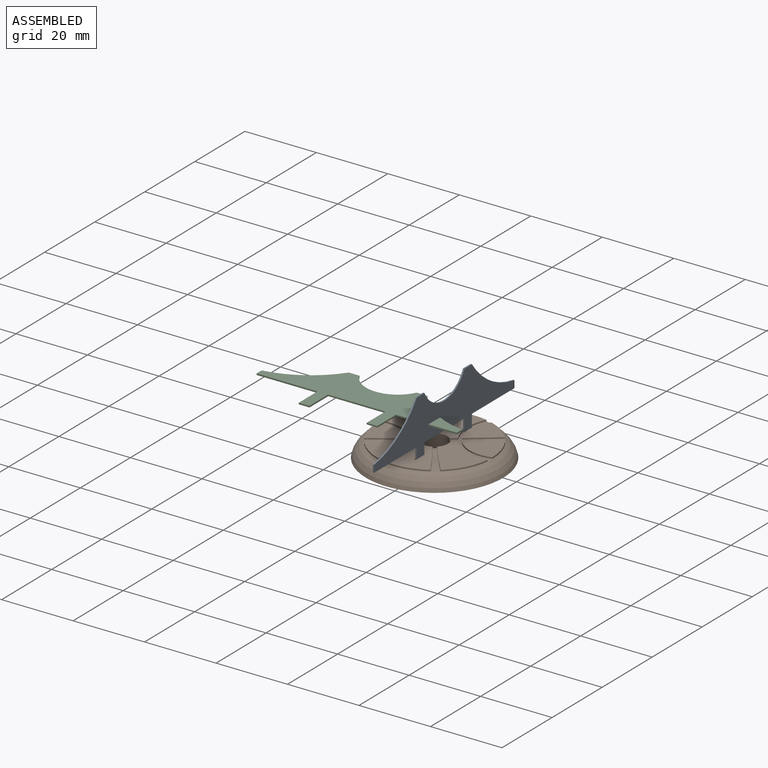
[diagram: assembled view]
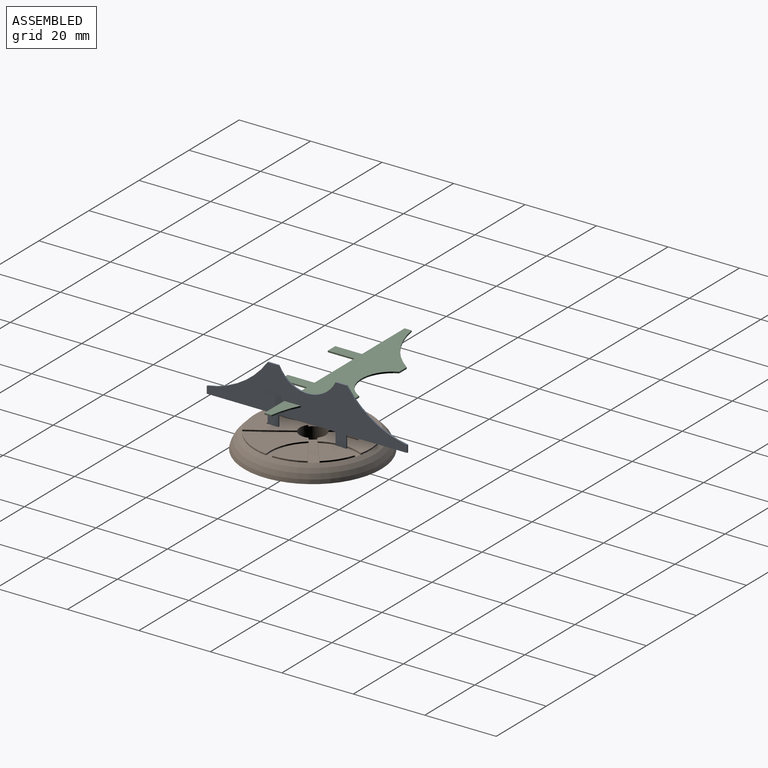
[diagram: assembled view, second angle]
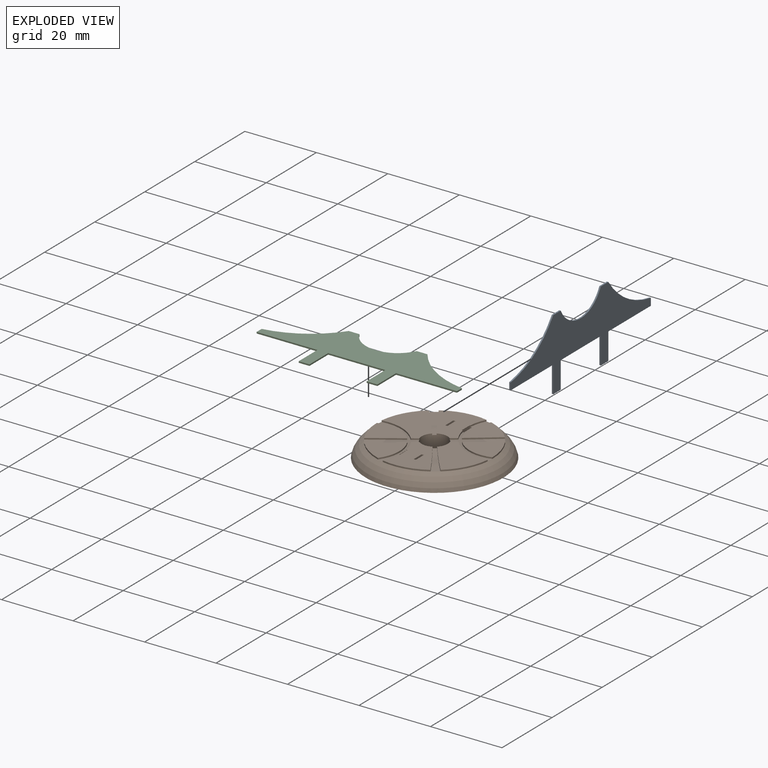
[diagram: exploded view]
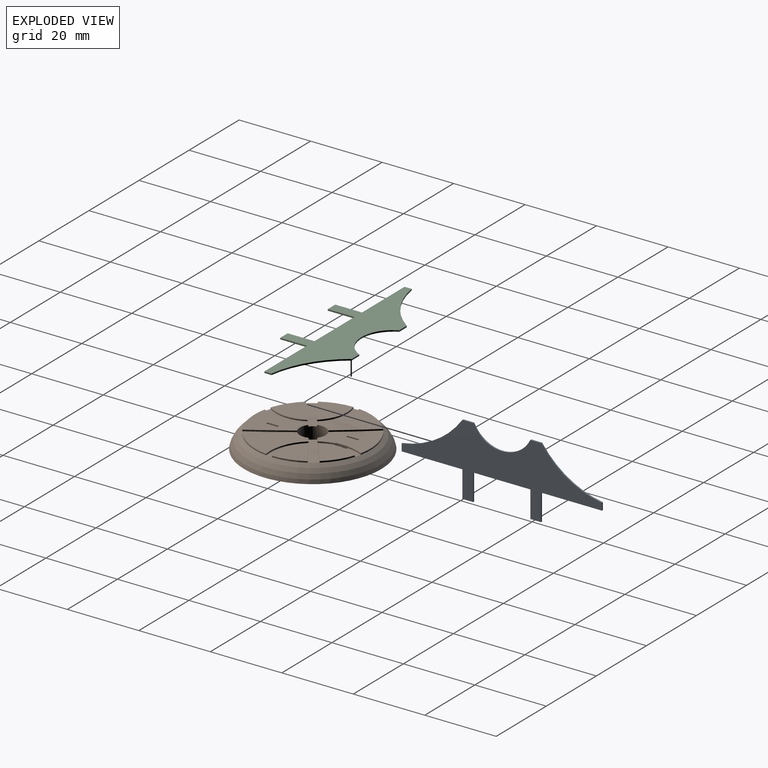
[diagram: exploded view, second angle]
ASSEMBLY  parts=3 mates=3
PART A: 18 faces, bbox 56x20x0.4 mm
  f0: cylinder r=25.4mm len=17.02mm, axis (0,0,-1), area 8.2mm2, adj f1,f15,f16,f17
  f1: plane 2x0.4mm, normal (-1,0,0), area 0.8mm2, adj f0,f2,f16,f17
  f2: plane 17.02x0.4mm, normal (0,-1,0), area 6.8mm2, adj f1,f3,f16,f17
  f3: plane 7.48x0.4mm, normal (-1,0,0), area 3mm2, adj f2,f4,f16,f17
  f4: plane 3x0.4mm, normal (0,-1,0), area 1.2mm2, adj f3,f5,f16,f17
  f5: plane 7.48x0.4mm, normal (1,0,0), area 3mm2, adj f4,f6,f16,f17
  f6: plane 16x0.4mm, normal (0,-1,0), area 6.4mm2, adj f5,f7,f16,f17
  f7: plane 7.48x0.4mm, normal (-1,0,0), area 3mm2, adj f6,f8,f16,f17
  f8: plane 3x0.4mm, normal (0,-1,0), area 1.2mm2, adj f7,f9,f16,f17
  f9: plane 7.48x0.4mm, normal (1,0,0), area 3mm2, adj f8,f10,f16,f17
  f10: plane 17.02x0.4mm, normal (0,-1,0), area 6.8mm2, adj f9,f11,f16,f17
  f11: plane 2x0.4mm, normal (1,0,0), area 0.8mm2, adj f10,f12,f16,f17
  f12: cylinder r=25.4mm len=17.02mm, axis (0,0,-1), area 8.2mm2, adj f11,f13,f16,f17
  f13: plane 3x0.4mm, normal (0,1,0), area 1.2mm2, adj f12,f14,f16,f17
  f14: cylinder r=8.9mm len=16mm, axis (0,0,-1), area 8mm2, adj f13,f15,f16,f17
  f15: plane 3x0.4mm, normal (0,1,0), area 1.2mm2, adj f0,f14,f16,f17
  f16: plane 56.05x20mm, normal (0,0,1), area 455.1mm2, adj f0,f1,f2,f3,f4,f5,f6,f7
  f17: plane 56.05x20mm, normal (0,0,-1), area 455.1mm2, adj f0,f1,f2,f3,f4,f5,f6,f7
PART B: 61 faces, bbox 41.8x41.8x5.8 mm
  f0: plane 21.7x12.71mm, normal (0,0,1), area 55.6mm2, adj f6,f7,f11,f12,f27,f28,f30,f33
  f1: plane 21.7x12.71mm, normal (0,0,1), area 55.6mm2, adj f3,f4,f11,f12,f15,f17,f18,f22
  f2: plane 38.4x38.4mm, normal (0,0,-1), area 1109.3mm2, adj f11,f12,f45,f46,f47,f48,f49,f50
  f3: cylinder r=12.19mm len=3.76mm, axis (0,0,-1), area 1.9mm2, adj f1,f5,f13,f54
  f4: cylinder r=12.19mm len=4.1mm, axis (0,0,-1), area 1.7mm2, adj f1,f5,f15,f55
  f5: plane 15.15x11.5mm, normal (0,0,1), area 99.3mm2, adj f3,f4,f11,f13,f14,f15,f54,f55
  f6: cylinder r=12.19mm len=4.1mm, axis (0,0,-1), area 1.7mm2, adj f0,f8,f30,f50
  f7: cylinder r=12.19mm len=3.76mm, axis (0,0,-1), area 1.9mm2, adj f0,f8,f31,f51
  f8: plane 15.15x11.5mm, normal (0,0,1), area 99.3mm2, adj f6,f7,f11,f30,f31,f32,f45,f46
  f9: plane 12.61x2.29mm, normal (0,0,1), area 19.3mm2, adj f11,f12,f14,f25
  f10: plane 12.61x2.29mm, normal (0,0,1), area 19.3mm2, adj f11,f12,f20,f32
  f11: cylinder r=3.62mm len=7.24mm, axis (0,0,-1), area 97.6mm2, adj f0,f1,f2,f5,f8,f9,f10,f14
  f12: torus R=13.55mm, axis (0,0,-1), area 585.6mm2, adj f0,f1,f2,f9,f10,f13,f16,f21
  f13: cylinder r=16.19mm len=10.88mm, axis (0,0,-1), area 5mm2, adj f3,f5,f12,f14
  f14: cylinder r=199.28mm len=12.57mm, axis (0,0,-1), area 5mm2, adj f5,f9,f11,f13
  f15: plane 1.95x0.4mm, normal (0.03,-1,0), area 0.8mm2, adj f1,f4,f5,f11
  f16: cylinder r=16.19mm len=8.13mm, axis (0,0,-1), area 3.5mm2, adj f12,f17,f18,f19
  f17: cylinder r=9.98mm len=8.42mm, axis (0,0,-1), area 4.6mm2, adj f1,f16,f18,f19
  f18: plane 9.87x0.4mm, normal (0.03,-1,0), area 3.9mm2, adj f1,f16,f17,f19
  f19: plane 9.87x8.42mm, normal (0,0,1), area 55.7mm2, adj f16,f17,f18
  f20: cylinder r=199.28mm len=12.57mm, axis (0,0,-1), area 5mm2, adj f10,f11,f21,f24
  f21: cylinder r=16.19mm len=10.88mm, axis (0,0,-1), area 5mm2, adj f12,f20,f22,f24
  f22: cylinder r=12.19mm len=9.79mm, axis (0,0,-1), area 4.9mm2, adj f1,f21,f23,f24
  f23: plane 1.95x0.4mm, normal (0.03,1,0), area 0.8mm2, adj f1,f11,f22,f24
  f24: plane 15.15x11.5mm, normal (0,0,1), area 101.7mm2, adj f11,f20,f21,f22,f23
  f25: cylinder r=199.28mm len=12.57mm, axis (0,0,-1), area 5mm2, adj f9,f11,f26,f29
  f26: cylinder r=16.19mm len=10.88mm, axis (0,0,-1), area 5mm2, adj f12,f25,f27,f29
  f27: cylinder r=12.19mm len=9.79mm, axis (0,0,-1), area 4.9mm2, adj f0,f26,f28,f29
  f28: plane 1.95x0.4mm, normal (-0.03,-1,0), area 0.8mm2, adj f0,f11,f27,f29
  f29: plane 15.15x11.5mm, normal (0,0,1), area 101.7mm2, adj f11,f25,f26,f27,f28
  f30: plane 1.95x0.4mm, normal (-0.03,1,0), area 0.8mm2, adj f0,f6,f8,f11
  f31: cylinder r=16.19mm len=10.88mm, axis (0,0,-1), area 5mm2, adj f7,f8,f12,f32
  f32: cylinder r=199.28mm len=12.57mm, axis (0,0,-1), area 5mm2, adj f8,f10,f11,f31
  f33: cylinder r=9.98mm len=8.42mm, axis (0,0,-1), area 4.6mm2, adj f0,f34,f35,f36
  f34: cylinder r=16.19mm len=8.13mm, axis (0,0,-1), area 3.5mm2, adj f12,f33,f35,f36
  f35: plane 9.87x0.4mm, normal (-0.03,-1,0), area 3.9mm2, adj f0,f33,f34,f36
  f36: plane 9.87x8.42mm, normal (0,0,1), area 55.7mm2, adj f33,f34,f35
  f37: cylinder r=9.98mm len=8.42mm, axis (0,0,-1), area 4.6mm2, adj f0,f38,f39,f40
  f38: plane 9.87x0.4mm, normal (-0.03,1,0), area 3.9mm2, adj f0,f37,f39,f40
  f39: cylinder r=16.19mm len=8.13mm, axis (0,0,-1), area 3.5mm2, adj f12,f37,f38,f40
  f40: plane 9.87x8.42mm, normal (0,0,1), area 55.7mm2, adj f37,f38,f39
  f41: plane 9.87x0.4mm, normal (0.03,1,0), area 3.9mm2, adj f1,f42,f43,f44
  f42: cylinder r=9.98mm len=8.42mm, axis (0,0,-1), area 4.6mm2, adj f1,f41,f43,f44
  f43: cylinder r=16.19mm len=8.13mm, axis (0,0,-1), area 3.5mm2, adj f12,f41,f42,f44
  f44: plane 9.87x8.42mm, normal (0,0,1), area 55.7mm2, adj f41,f42,f43
  f45: plane 4.4x0.49mm, normal (-0.58,-0.81,0), area 2.6mm2, adj f2,f8,f46,f48
  f46: plane 4.4x2.6mm, normal (0.81,-0.58,0), area 14.1mm2, adj f2,f8,f45,f47
  f47: plane 4.4x0.49mm, normal (0.58,0.81,0), area 2.6mm2, adj f2,f8,f46,f48
  f48: plane 4.4x2.6mm, normal (-0.81,0.58,0), area 14.1mm2, adj f2,f8,f45,f47
  f49: plane 4x2.6mm, normal (0.81,-0.58,0), area 12.8mm2, adj f0,f2,f50,f51
  f50: plane 4.4x0.49mm, normal (-0.58,-0.81,0), area 2.5mm2, adj f0,f2,f6,f8,f49,f52
  f51: plane 4.4x0.49mm, normal (0.58,0.81,0), area 2.4mm2, adj f0,f2,f7,f8,f49,f52
  f52: plane 4.4x2.6mm, normal (-0.81,0.58,0), area 14.1mm2, adj f2,f8,f50,f51
  f53: plane 4x2.6mm, normal (-0.81,0.58,0), area 12.8mm2, adj f1,f2,f54,f55
  f54: plane 4.4x0.49mm, normal (-0.58,-0.81,0), area 2.4mm2, adj f1,f2,f3,f5,f53,f56
  f55: plane 4.4x0.49mm, normal (0.58,0.81,0), area 2.5mm2, adj f1,f2,f4,f5,f53,f56
  f56: plane 4.4x2.6mm, normal (0.81,-0.58,0), area 14.1mm2, adj f2,f5,f54,f55
  f57: plane 4.4x0.49mm, normal (0.58,0.81,0), area 2.6mm2, adj f2,f5,f58,f60
  f58: plane 4.4x2.6mm, normal (-0.81,0.58,0), area 14.1mm2, adj f2,f5,f57,f59
  f59: plane 4.4x0.49mm, normal (-0.58,-0.81,0), area 2.6mm2, adj f2,f5,f58,f60
  f60: plane 4.4x2.6mm, normal (0.81,-0.58,0), area 14.1mm2, adj f2,f5,f57,f59
PART C: same geometry as A
PLACE A rot(axis=(0.58,0.58,0.58),120deg) t=(0.91,-2.06,-3.84)mm
PLACE B rot(axis=(0,0,1),35.7deg) t=(-1.29,-2.26,-3.84)mm
PLACE C t=(-18.76,-15.89,7.21)mm
MATE planar A.f9 <-> B.f54  axis (0,1,0) through (1.11,8.94,-0.1)mm
MATE planar A.f8 <-> B.f11  axis (0,0,-1) through (1.11,7.44,-3.84)mm
MATE planar A.f16 <-> B.f53  axis (1,0,0) through (1.31,8.94,-0.1)mm
